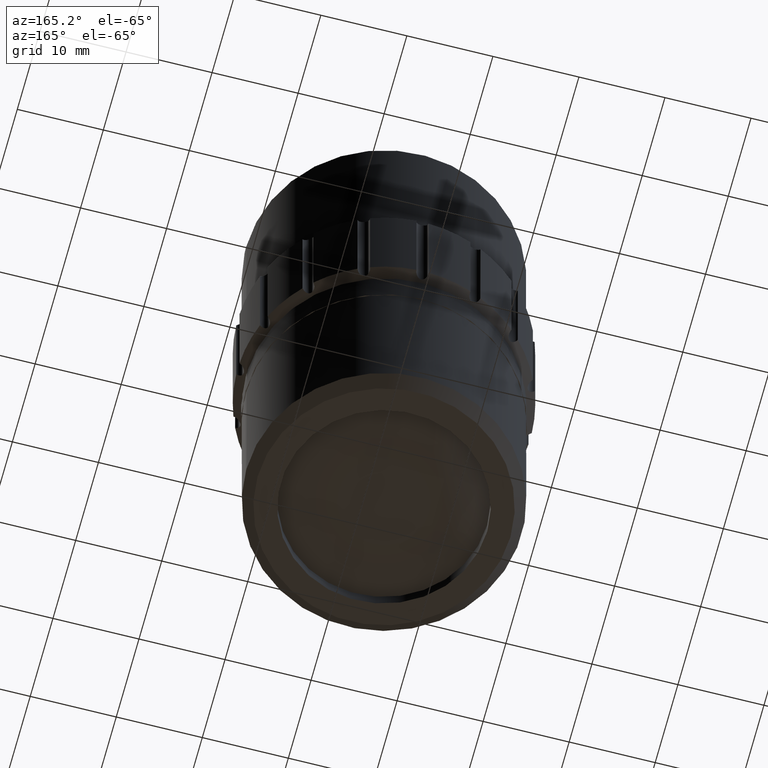
[diagram: clean part render]
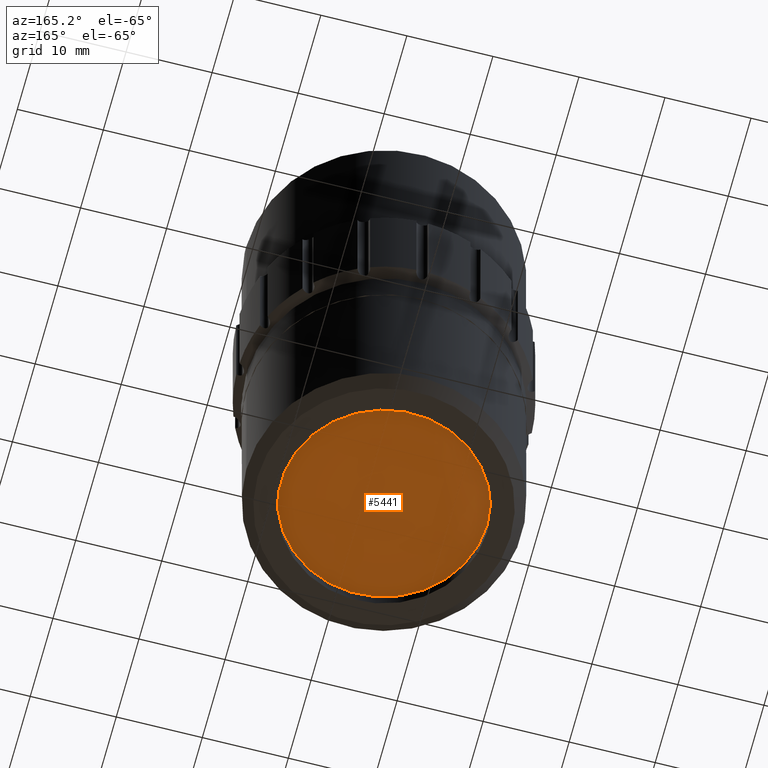
[diagram: same view with one face highlighted and labeled with its STEP entity id]
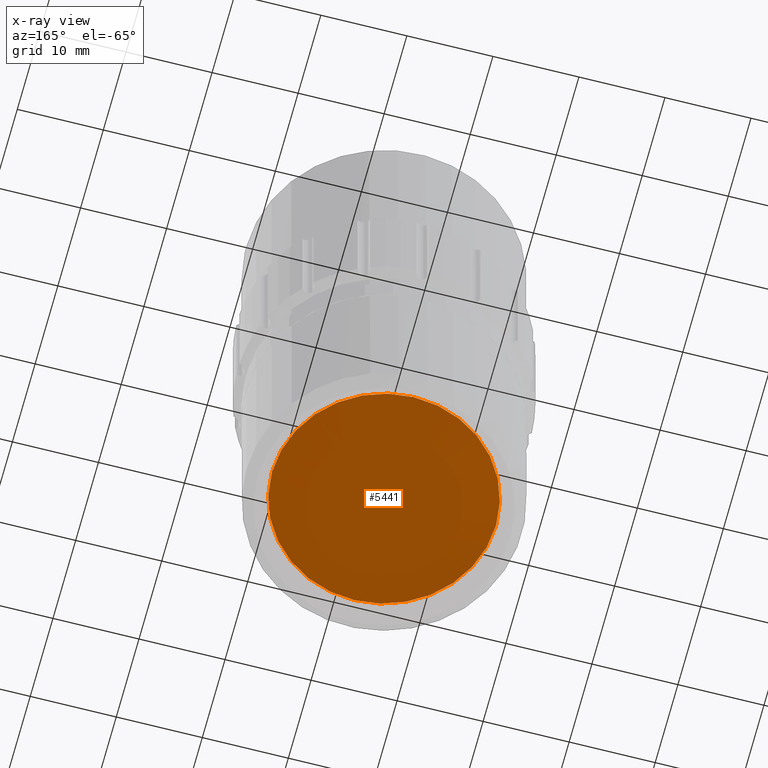
[diagram: x-ray of the same camera — body ghosted, the highlighted face saturated]
A machine part, auxiliary view. The second image highlights one B-rep face of the part: STEP entity #5441.
The next image is the same camera in x-ray: the body ghosted, the highlighted face saturated — about 0% of this face is hidden behind the body in this view.
In plain terms, the highlighted spherical surface has radius 31.2095 mm.
Its self-contained STEP definition (entity closure, byte-faithful):
#34 = ORIENTED_EDGE ( 'NONE', *, *, #13593, .F. ) ;
#1663 = AXIS2_PLACEMENT_3D ( 'NONE', #10261, #7096, #5687 ) ;
#1685 = EDGE_LOOP ( 'NONE', ( #34 ) ) ;
#4377 = SPHERICAL_SURFACE ( 'NONE', #1663, 31.20951493132239918 ) ;
#5441 = ADVANCED_FACE ( 'NONE', ( #13830 ), #4377, .T. ) ;
#5687 = DIRECTION ( 'NONE',  ( 0.000000000000000000, -1.000000000000000000, 0.000000000000000000 ) ) ;
#6680 = CARTESIAN_POINT ( 'NONE',  ( -122.6630341068842824, 35.03833184500979314, -31.75669217563123325 ) ) ;
#6977 = DIRECTION ( 'NONE',  ( -0.000000000000000000, -1.313240075463129887E-16, 1.000000000000000000 ) ) ;
#7096 = DIRECTION ( 'NONE',  ( 0.000000000000000000, 0.000000000000000000, -1.000000000000000000 ) ) ;
#10261 = CARTESIAN_POINT ( 'NONE',  ( -122.6630341068842824, 22.01530283243863195, -3.394136973637086552 ) ) ;
#11175 = CIRCLE ( 'NONE', #13574, 13.02302901257115764 ) ;
#11364 = CARTESIAN_POINT ( 'NONE',  ( -122.6630341068842824, 22.01530283243863195, -31.75669217563123325 ) ) ;
#11556 = DIRECTION ( 'NONE',  ( 0.000000000000000000, 1.000000000000000000, 0.000000000000000000 ) ) ;
#13574 = AXIS2_PLACEMENT_3D ( 'NONE', #11364, #6977, #11556 ) ;
#13593 = EDGE_CURVE ( 'NONE', #14163, #14163, #11175, .T. ) ;
#13830 = FACE_OUTER_BOUND ( 'NONE', #1685, .T. ) ;
#14163 = VERTEX_POINT ( 'NONE', #6680 ) ;